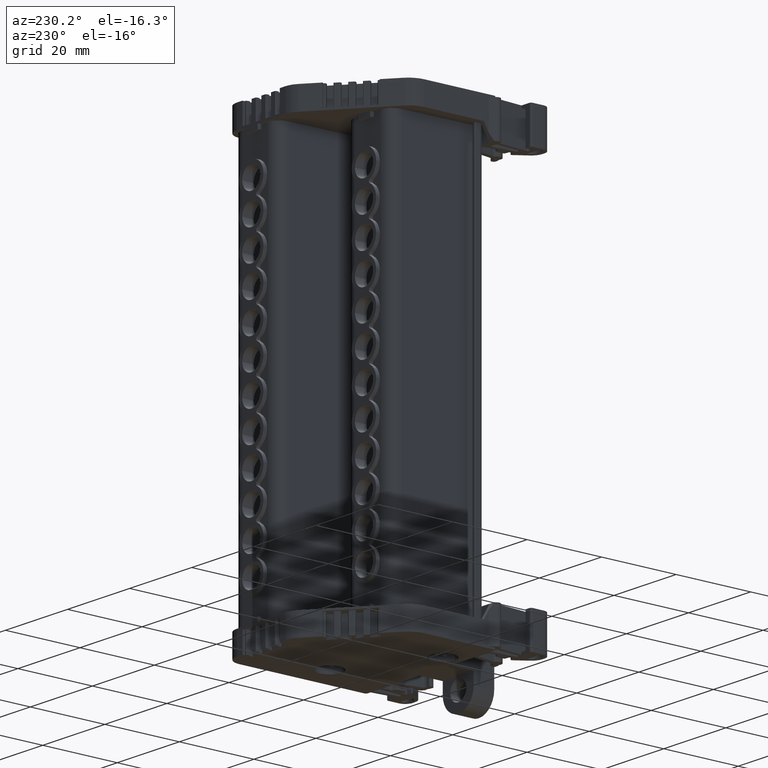
[diagram: clean part render]
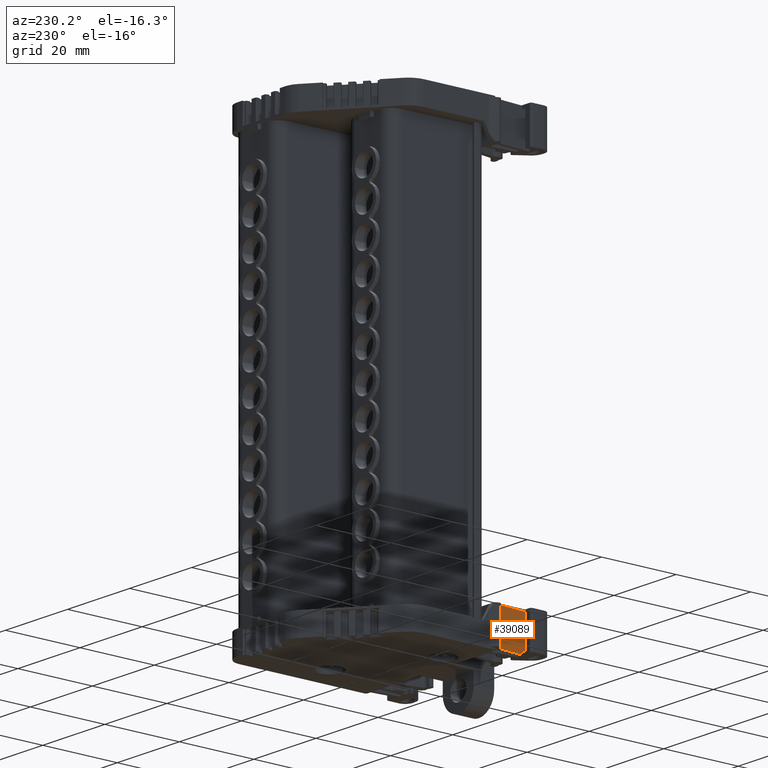
[diagram: same view with one face highlighted and labeled with its STEP entity id]
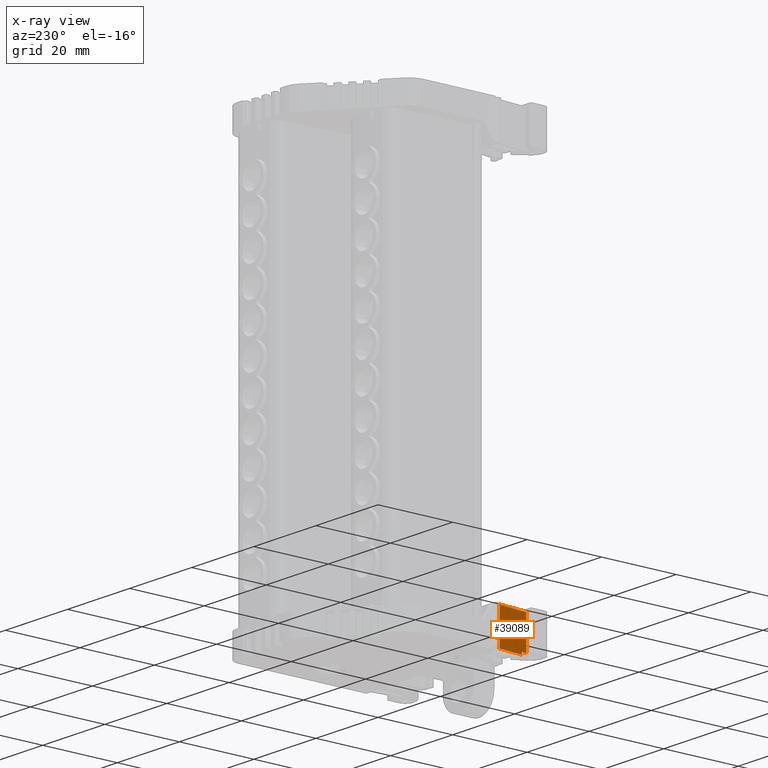
[diagram: x-ray of the same camera — body ghosted, the highlighted face saturated]
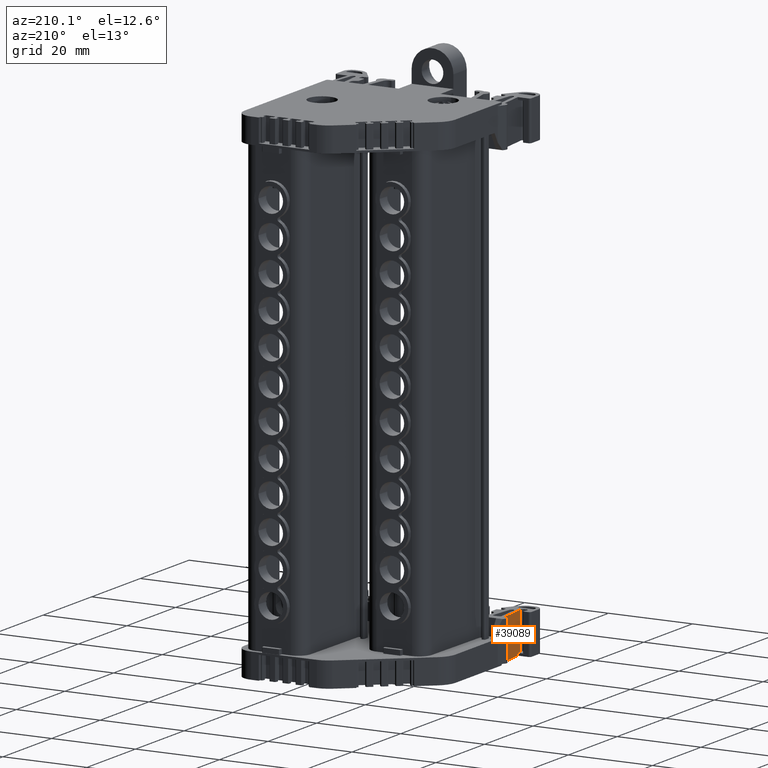
[diagram: same view with one face highlighted and labeled with its STEP entity id]
A machine part, auxiliary view. The second image highlights one B-rep face of the part: STEP entity #39089.
The next image is the same camera in x-ray: the body ghosted, the highlighted face saturated — about 0% of this face is hidden behind the body in this view.
A second angle (auxiliary view) of the same face is appended — the face is thin or edge-on in the first view.
In plain terms, the highlighted planar face has unit normal (-0.9962, -0.0871, 0).
Its self-contained STEP definition (entity closure, byte-faithful):
#1702 = FACE_OUTER_BOUND ( 'NONE', #63399, .T. ) ;
#1706 = CARTESIAN_POINT ( 'NONE',  ( -64.01358963861210300, -31.42989675365030100, -32.09224290364844700 ) ) ;
#1718 = PLANE ( 'NONE',  #69342 ) ;
#1728 = DIRECTION ( 'NONE',  ( -0.9961992664487244700, -0.08710351041733792300, 0.0000000000000000000 ) ) ;
#1751 = DIRECTION ( 'NONE',  ( 0.08710351041733790900, -0.9961992664487243600, 0.0000000000000000000 ) ) ;
#2326 = EDGE_CURVE ( 'NONE', #4576, #12674, #22050, .T. ) ;
#2440 = EDGE_CURVE ( 'NONE', #35314, #4432, #22226, .T. ) ;
#2445 = EDGE_CURVE ( 'NONE', #35293, #35314, #22209, .T. ) ;
#2517 = EDGE_CURVE ( 'NONE', #35293, #12754, #22321, .T. ) ;
#4432 = VERTEX_POINT ( 'NONE', #23604 ) ;
#4576 = VERTEX_POINT ( 'NONE', #23683 ) ;
#12674 = VERTEX_POINT ( 'NONE', #34917 ) ;
#12754 = VERTEX_POINT ( 'NONE', #37132 ) ;
#14450 = EDGE_CURVE ( 'NONE', #4576, #4432, #45577, .T. ) ;
#18157 = VECTOR ( 'NONE', #45598, 1000.000000000000100 ) ;
#22047 = DIRECTION ( 'NONE',  ( -0.0000000000000000000, -0.0000000000000000000, -1.000000000000000000 ) ) ;
#22050 = LINE ( 'NONE', #22052, #34284 ) ;
#22052 = CARTESIAN_POINT ( 'NONE',  ( -67.67353861084690400, 10.42878912377134200, -32.09224290364844700 ) ) ;
#22201 = DIRECTION ( 'NONE',  ( 0.0000000000000000000, 0.0000000000000000000, 1.000000000000000000 ) ) ;
#22209 = LINE ( 'NONE', #22239, #34609 ) ;
#22211 = DIRECTION ( 'NONE',  ( 0.08710351041733790900, -0.9961992664487243600, 0.0000000000000000000 ) ) ;
#22226 = LINE ( 'NONE', #22235, #34586 ) ;
#22235 = CARTESIAN_POINT ( 'NONE',  ( -66.99594544168915900, 2.679183914619520700, -32.09224290364844700 ) ) ;
#22239 = CARTESIAN_POINT ( 'NONE',  ( -64.01358963861210300, -31.42989675365030100, -40.96604074463950000 ) ) ;
#22321 = LINE ( 'NONE', #22324, #34622 ) ;
#22324 = CARTESIAN_POINT ( 'NONE',  ( -67.11914388249050500, 4.088199415439874900, -32.09224290364844700 ) ) ;
#22329 = DIRECTION ( 'NONE',  ( -0.0000000000000000000, 0.0000000000000000000, -1.000000000000000000 ) ) ;
#23604 = CARTESIAN_POINT ( 'NONE',  ( -66.99594544168918700, 2.679183914619520200, -32.09224290364844700 ) ) ;
#23683 = CARTESIAN_POINT ( 'NONE',  ( -67.67353861084690400, 10.42878912377134000, -32.09224290364844700 ) ) ;
#25492 = EDGE_CURVE ( 'NONE', #12674, #12754, #66082, .T. ) ;
#34284 = VECTOR ( 'NONE', #22047, 1000.000000000000000 ) ;
#34586 = VECTOR ( 'NONE', #22201, 1000.000000000000000 ) ;
#34609 = VECTOR ( 'NONE', #22211, 1000.000000000000100 ) ;
#34622 = VECTOR ( 'NONE', #22329, 1000.000000000000000 ) ;
#34917 = CARTESIAN_POINT ( 'NONE',  ( -67.67353861084690400, 10.42878912377134200, -41.56427430695350000 ) ) ;
#35293 = VERTEX_POINT ( 'NONE', #68443 ) ;
#35314 = VERTEX_POINT ( 'NONE', #68406 ) ;
#37132 = CARTESIAN_POINT ( 'NONE',  ( -67.11914388249050500, 4.088199415439880200, -41.56427430695350000 ) ) ;
#39089 = ADVANCED_FACE ( 'NONE', ( #1702 ), #1718, .T. ) ;
#44509 = ORIENTED_EDGE ( 'NONE', *, *, #2517, .F. ) ;
#44517 = ORIENTED_EDGE ( 'NONE', *, *, #25492, .T. ) ;
#44621 = ORIENTED_EDGE ( 'NONE', *, *, #14450, .F. ) ;
#44662 = ORIENTED_EDGE ( 'NONE', *, *, #2445, .T. ) ;
#44667 = ORIENTED_EDGE ( 'NONE', *, *, #2326, .T. ) ;
#44696 = ORIENTED_EDGE ( 'NONE', *, *, #2440, .T. ) ;
#45565 = CARTESIAN_POINT ( 'NONE',  ( -67.67353861084690400, 10.42878912377133600, -32.09224290364844700 ) ) ;
#45577 = LINE ( 'NONE', #45565, #18157 ) ;
#45598 = DIRECTION ( 'NONE',  ( 0.08710351041733487000, -0.9961992664487247000, 0.0000000000000000000 ) ) ;
#63399 = EDGE_LOOP ( 'NONE', ( #44509, #44662, #44696, #44621, #44667, #44517 ) ) ;
#64777 = VECTOR ( 'NONE', #66131, 1000.000000000000100 ) ;
#66082 = LINE ( 'NONE', #66083, #64777 ) ;
#66083 = CARTESIAN_POINT ( 'NONE',  ( -64.01358963861210300, -31.42989675365030100, -41.56427430695350000 ) ) ;
#66131 = DIRECTION ( 'NONE',  ( 0.08710351041733790900, -0.9961992664487243600, 0.0000000000000000000 ) ) ;
#68406 = CARTESIAN_POINT ( 'NONE',  ( -66.99594544168918700, 2.679183914619517500, -40.96604074463950000 ) ) ;
#68443 = CARTESIAN_POINT ( 'NONE',  ( -67.11914388249050500, 4.088199415439874900, -40.96604074463950000 ) ) ;
#69342 = AXIS2_PLACEMENT_3D ( 'NONE', #1706, #1728, #1751 ) ;